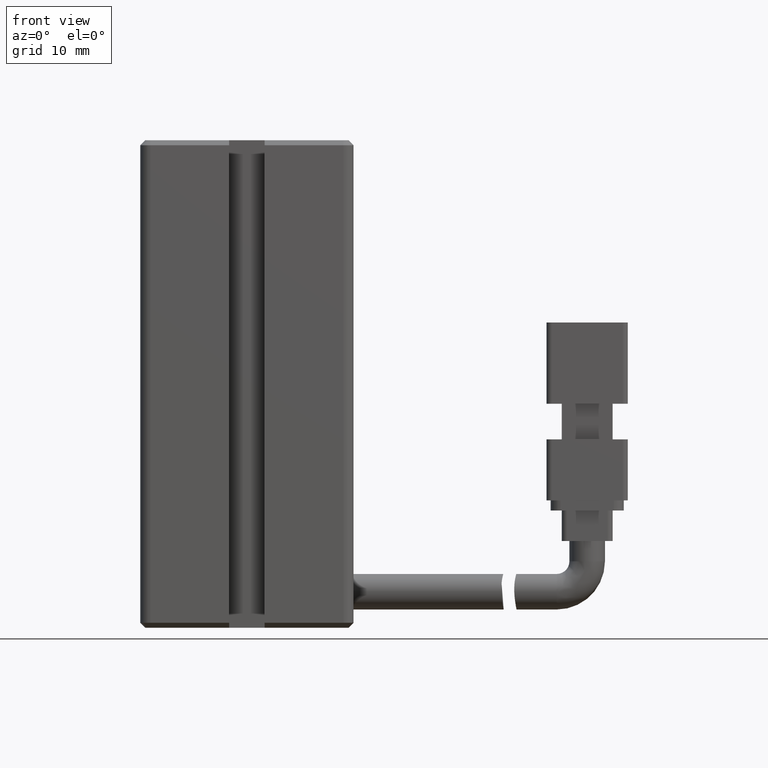
[diagram: clean part render]
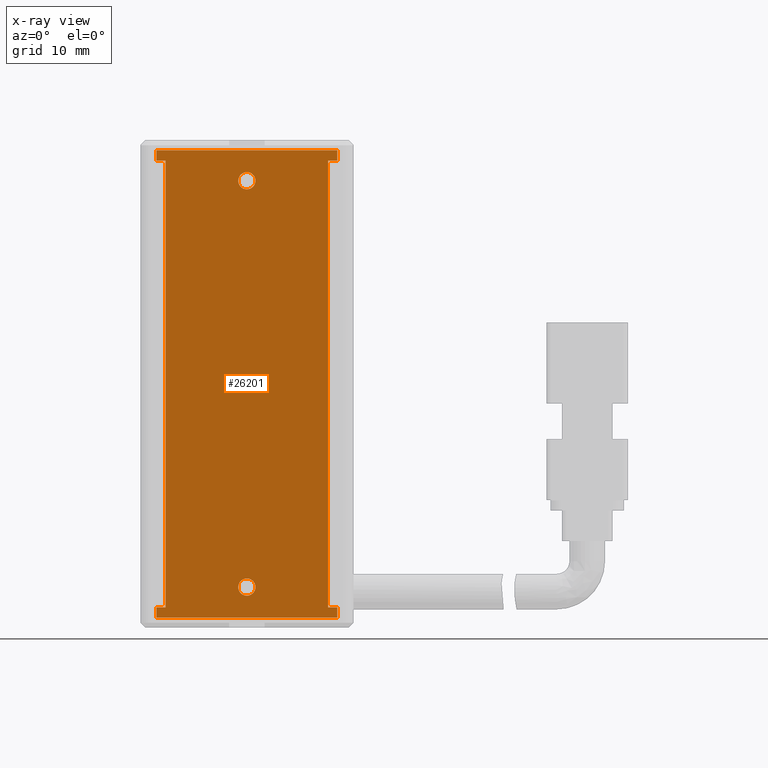
[diagram: x-ray — body ghosted, one internal face saturated and labeled with its STEP entity id]
A machine part, front view, then the same camera in x-ray: the body is ghosted and one INTERNAL B-rep face — a face not visible from any outside direction — is saturated and labeled: STEP entity #26201.
In plain terms, the highlighted planar face has unit normal (-0, 1, 0).
Its self-contained STEP definition (entity closure, byte-faithful):
#14 = ORIENTED_EDGE ( 'NONE', *, *, #17864, .F. ) ;
#63 = LINE ( 'NONE', #4789, #19734 ) ;
#184 = DIRECTION ( 'NONE',  ( 0.0000000000000000000, 0.0000000000000000000, 1.000000000000000000 ) ) ;
#286 = EDGE_LOOP ( 'NONE', ( #15730, #19666 ) ) ;
#483 = CIRCLE ( 'NONE', #11554, 0.8500000000000035300 ) ;
#758 = CARTESIAN_POINT ( 'NONE',  ( 40.92537974683542500, 31.49073232304836600, -135.0000000000000000 ) ) ;
#1601 = CARTESIAN_POINT ( 'NONE',  ( 49.82537974683543100, 31.49073232304836600, -92.00000000000001400 ) ) ;
#1969 = CARTESIAN_POINT ( 'NONE',  ( 49.82537974683543100, 31.49073232304836600, -138.0000000000000000 ) ) ;
#2538 = VECTOR ( 'NONE', #5864, 1000.000000000000000 ) ;
#2645 = LINE ( 'NONE', #25489, #18529 ) ;
#3843 = EDGE_CURVE ( 'NONE', #30228, #37076, #9874, .T. ) ;
#3874 = VERTEX_POINT ( 'NONE', #37229 ) ;
#4023 = VERTEX_POINT ( 'NONE', #7896 ) ;
#4068 = EDGE_CURVE ( 'NONE', #34183, #18197, #483, .T. ) ;
#4177 = DIRECTION ( 'NONE',  ( -0.0000000000000000000, -1.000000000000000000, -0.0000000000000000000 ) ) ;
#4376 = CARTESIAN_POINT ( 'NONE',  ( 49.82537974683543100, 31.49073232304836600, -93.00000000000000000 ) ) ;
#4789 = CARTESIAN_POINT ( 'NONE',  ( 32.02537974683542600, 31.49073232304836600, -92.00000000000001400 ) ) ;
#4816 = EDGE_CURVE ( 'NONE', #26767, #8850, #13237, .T. ) ;
#5229 = DIRECTION ( 'NONE',  ( 1.548860246407863500E-017, 0.0000000000000000000, 1.000000000000000000 ) ) ;
#5733 = DIRECTION ( 'NONE',  ( -0.0000000000000000000, 1.000000000000000000, 0.0000000000000000000 ) ) ;
#5765 = VECTOR ( 'NONE', #28436, 1000.000000000000000 ) ;
#5864 = DIRECTION ( 'NONE',  ( 1.000000000000000000, 0.0000000000000000000, 0.0000000000000000000 ) ) ;
#5923 = CARTESIAN_POINT ( 'NONE',  ( 40.92537974683542500, 31.49073232304836600, -137.0000000000000000 ) ) ;
#6562 = FACE_OUTER_BOUND ( 'NONE', #16074, .T. ) ;
#6609 = CARTESIAN_POINT ( 'NONE',  ( 40.92537974683542500, 31.49073232304836600, -94.15000000000000600 ) ) ;
#6978 = DIRECTION ( 'NONE',  ( -1.548860246407863500E-017, -0.0000000000000000000, -1.000000000000000000 ) ) ;
#7257 = LINE ( 'NONE', #1601, #38136 ) ;
#7302 = EDGE_CURVE ( 'NONE', #8850, #14163, #2645, .T. ) ;
#7861 = EDGE_CURVE ( 'NONE', #3874, #12065, #34262, .T. ) ;
#7896 = CARTESIAN_POINT ( 'NONE',  ( 48.92537974683541800, 31.49073232304836600, -137.0000000000000000 ) ) ;
#8493 = ORIENTED_EDGE ( 'NONE', *, *, #22678, .T. ) ;
#8681 = ORIENTED_EDGE ( 'NONE', *, *, #7302, .F. ) ;
#8691 = DIRECTION ( 'NONE',  ( 0.0000000000000000000, 0.0000000000000000000, 1.000000000000000000 ) ) ;
#8850 = VERTEX_POINT ( 'NONE', #4376 ) ;
#9106 = CARTESIAN_POINT ( 'NONE',  ( 32.02537974683542600, 31.49073232304836600, -137.0000000000000000 ) ) ;
#9319 = CARTESIAN_POINT ( 'NONE',  ( 30.42537974683542500, 31.49073232304836600, -93.00000000000000000 ) ) ;
#9452 = VERTEX_POINT ( 'NONE', #22627 ) ;
#9866 = ORIENTED_EDGE ( 'NONE', *, *, #32088, .F. ) ;
#9874 = LINE ( 'NONE', #28360, #37533 ) ;
#11042 = EDGE_CURVE ( 'NONE', #37076, #16675, #35071, .T. ) ;
#11117 = CIRCLE ( 'NONE', #24940, 0.8500000000000035300 ) ;
#11339 = DIRECTION ( 'NONE',  ( -0.0000000000000000000, -1.000000000000000000, -0.0000000000000000000 ) ) ;
#11404 = CIRCLE ( 'NONE', #37981, 0.8499999999999896500 ) ;
#11491 = VERTEX_POINT ( 'NONE', #23393 ) ;
#11554 = AXIS2_PLACEMENT_3D ( 'NONE', #30449, #36328, #184 ) ;
#12065 = VERTEX_POINT ( 'NONE', #21150 ) ;
#12138 = DIRECTION ( 'NONE',  ( -1.000000000000000000, -0.0000000000000000000, 0.0000000000000000000 ) ) ;
#12961 = CARTESIAN_POINT ( 'NONE',  ( 49.82537974683543100, 31.49073232304836600, -92.00000000000001400 ) ) ;
#13237 = LINE ( 'NONE', #12961, #26872 ) ;
#13256 = VECTOR ( 'NONE', #20844, 1000.000000000000000 ) ;
#13259 = DIRECTION ( 'NONE',  ( -0.0000000000000000000, -0.0000000000000000000, -1.000000000000000000 ) ) ;
#14020 = CARTESIAN_POINT ( 'NONE',  ( 48.92537974683541800, 31.49073232304836600, -93.00000000000000000 ) ) ;
#14163 = VERTEX_POINT ( 'NONE', #14020 ) ;
#14326 = ORIENTED_EDGE ( 'NONE', *, *, #11042, .T. ) ;
#15414 = ORIENTED_EDGE ( 'NONE', *, *, #4816, .F. ) ;
#15550 = ORIENTED_EDGE ( 'NONE', *, *, #24098, .F. ) ;
#15730 = ORIENTED_EDGE ( 'NONE', *, *, #18087, .F. ) ;
#15849 = LINE ( 'NONE', #34692, #30891 ) ;
#16074 = EDGE_LOOP ( 'NONE', ( #15550, #8493, #17906, #14326, #38474, #23351, #24648, #17490, #14, #8681, #15414, #36926 ) ) ;
#16675 = VERTEX_POINT ( 'NONE', #9106 ) ;
#16827 = CIRCLE ( 'NONE', #33871, 0.8499999999999896500 ) ;
#17490 = ORIENTED_EDGE ( 'NONE', *, *, #23687, .F. ) ;
#17864 = EDGE_CURVE ( 'NONE', #14163, #4023, #15849, .T. ) ;
#17906 = ORIENTED_EDGE ( 'NONE', *, *, #3843, .T. ) ;
#18006 = CARTESIAN_POINT ( 'NONE',  ( 40.92537974683542500, 31.49073232304836600, -137.0000000000000000 ) ) ;
#18087 = EDGE_CURVE ( 'NONE', #18197, #34183, #11117, .T. ) ;
#18197 = VERTEX_POINT ( 'NONE', #6609 ) ;
#18529 = VECTOR ( 'NONE', #28257, 1000.000000000000000 ) ;
#18708 = FACE_BOUND ( 'NONE', #38067, .T. ) ;
#19580 = ORIENTED_EDGE ( 'NONE', *, *, #28843, .F. ) ;
#19666 = ORIENTED_EDGE ( 'NONE', *, *, #4068, .F. ) ;
#19734 = VECTOR ( 'NONE', #19936, 1000.000000000000000 ) ;
#19936 = DIRECTION ( 'NONE',  ( 1.548860246407863500E-017, 0.0000000000000000000, 1.000000000000000000 ) ) ;
#20005 = DIRECTION ( 'NONE',  ( 0.0000000000000000000, 0.0000000000000000000, 1.000000000000000000 ) ) ;
#20164 = VERTEX_POINT ( 'NONE', #37799 ) ;
#20629 = CARTESIAN_POINT ( 'NONE',  ( 32.92537974683542500, 31.49073232304836600, -137.0000000000000000 ) ) ;
#20746 = CARTESIAN_POINT ( 'NONE',  ( 40.92537974683542500, 31.49073232304836600, -95.00000000000001400 ) ) ;
#20844 = DIRECTION ( 'NONE',  ( 1.548860246407863500E-017, 0.0000000000000000000, 1.000000000000000000 ) ) ;
#21021 = DIRECTION ( 'NONE',  ( -0.0000000000000000000, -1.000000000000000000, -0.0000000000000000000 ) ) ;
#21150 = CARTESIAN_POINT ( 'NONE',  ( 32.02537974683542600, 31.49073232304836600, -138.0000000000000000 ) ) ;
#21252 = VERTEX_POINT ( 'NONE', #24116 ) ;
#22627 = CARTESIAN_POINT ( 'NONE',  ( 49.82537974683543100, 31.49073232304836600, -137.0000000000000000 ) ) ;
#22629 = DIRECTION ( 'NONE',  ( -0.0000000000000000000, -0.0000000000000000000, -1.000000000000000000 ) ) ;
#22678 = EDGE_CURVE ( 'NONE', #31546, #30228, #27003, .T. ) ;
#22860 = EDGE_CURVE ( 'NONE', #9452, #3874, #7257, .T. ) ;
#23351 = ORIENTED_EDGE ( 'NONE', *, *, #7861, .F. ) ;
#23393 = CARTESIAN_POINT ( 'NONE',  ( 40.92537974683542500, 31.49073232304836600, -135.8499999999999900 ) ) ;
#23635 = CARTESIAN_POINT ( 'NONE',  ( 49.82537974683543100, 31.49073232304836600, -92.00000000000001400 ) ) ;
#23687 = EDGE_CURVE ( 'NONE', #4023, #9452, #26417, .T. ) ;
#24098 = EDGE_CURVE ( 'NONE', #31546, #20164, #63, .T. ) ;
#24116 = CARTESIAN_POINT ( 'NONE',  ( 40.92537974683542500, 31.49073232304836600, -134.1500000000000100 ) ) ;
#24648 = ORIENTED_EDGE ( 'NONE', *, *, #22860, .F. ) ;
#24940 = AXIS2_PLACEMENT_3D ( 'NONE', #20746, #21021, #8691 ) ;
#25489 = CARTESIAN_POINT ( 'NONE',  ( 40.92537974683542500, 31.49073232304836600, -93.00000000000000000 ) ) ;
#26201 = ADVANCED_FACE ( 'NONE', ( #36523, #18708, #6562 ), #38120, .F. ) ;
#26417 = LINE ( 'NONE', #18006, #2538 ) ;
#26767 = VERTEX_POINT ( 'NONE', #32491 ) ;
#26872 = VECTOR ( 'NONE', #6978, 1000.000000000000000 ) ;
#27003 = LINE ( 'NONE', #9319, #35893 ) ;
#27156 = DIRECTION ( 'NONE',  ( 1.000000000000000000, -0.0000000000000000000, 0.0000000000000000000 ) ) ;
#28257 = DIRECTION ( 'NONE',  ( -1.000000000000000000, -0.0000000000000000000, -0.0000000000000000000 ) ) ;
#28303 = CARTESIAN_POINT ( 'NONE',  ( 40.92537974683542500, 31.49073232304836600, -95.85000000000002300 ) ) ;
#28360 = CARTESIAN_POINT ( 'NONE',  ( 32.92537974683542500, 31.49073232304836600, -91.00000000000000000 ) ) ;
#28436 = DIRECTION ( 'NONE',  ( 1.000000000000000000, 0.0000000000000000000, -1.548860246407863500E-017 ) ) ;
#28443 = DIRECTION ( 'NONE',  ( -1.548860246407863500E-017, -0.0000000000000000000, -1.000000000000000000 ) ) ;
#28843 = EDGE_CURVE ( 'NONE', #21252, #11491, #11404, .T. ) ;
#30228 = VERTEX_POINT ( 'NONE', #35874 ) ;
#30449 = CARTESIAN_POINT ( 'NONE',  ( 40.92537974683542500, 31.49073232304836600, -95.00000000000001400 ) ) ;
#30891 = VECTOR ( 'NONE', #22629, 1000.000000000000000 ) ;
#31546 = VERTEX_POINT ( 'NONE', #32987 ) ;
#31795 = VECTOR ( 'NONE', #12138, 1000.000000000000000 ) ;
#32088 = EDGE_CURVE ( 'NONE', #11491, #21252, #16827, .T. ) ;
#32310 = CARTESIAN_POINT ( 'NONE',  ( 40.92537974683542500, 31.49073232304836600, -135.0000000000000000 ) ) ;
#32491 = CARTESIAN_POINT ( 'NONE',  ( 49.82537974683543100, 31.49073232304836600, -92.00000000000001400 ) ) ;
#32620 = AXIS2_PLACEMENT_3D ( 'NONE', #23635, #5733, #5229 ) ;
#32987 = CARTESIAN_POINT ( 'NONE',  ( 32.02537974683542600, 31.49073232304836600, -93.00000000000000000 ) ) ;
#33487 = DIRECTION ( 'NONE',  ( 0.0000000000000000000, 0.0000000000000000000, 1.000000000000000000 ) ) ;
#33835 = LINE ( 'NONE', #37435, #5765 ) ;
#33871 = AXIS2_PLACEMENT_3D ( 'NONE', #758, #4177, #33487 ) ;
#34183 = VERTEX_POINT ( 'NONE', #28303 ) ;
#34220 = EDGE_CURVE ( 'NONE', #12065, #16675, #37602, .T. ) ;
#34262 = LINE ( 'NONE', #1969, #38423 ) ;
#34692 = CARTESIAN_POINT ( 'NONE',  ( 48.92537974683541800, 31.49073232304836600, -91.00000000000000000 ) ) ;
#34828 = DIRECTION ( 'NONE',  ( -1.000000000000000000, -0.0000000000000000000, 1.548860246407863500E-017 ) ) ;
#35071 = LINE ( 'NONE', #5923, #31795 ) ;
#35874 = CARTESIAN_POINT ( 'NONE',  ( 32.92537974683542500, 31.49073232304836600, -93.00000000000000000 ) ) ;
#35893 = VECTOR ( 'NONE', #27156, 1000.000000000000000 ) ;
#36328 = DIRECTION ( 'NONE',  ( -0.0000000000000000000, -1.000000000000000000, -0.0000000000000000000 ) ) ;
#36523 = FACE_BOUND ( 'NONE', #286, .T. ) ;
#36926 = ORIENTED_EDGE ( 'NONE', *, *, #37880, .F. ) ;
#37076 = VERTEX_POINT ( 'NONE', #20629 ) ;
#37229 = CARTESIAN_POINT ( 'NONE',  ( 49.82537974683543100, 31.49073232304836600, -138.0000000000000000 ) ) ;
#37435 = CARTESIAN_POINT ( 'NONE',  ( 49.82537974683543100, 31.49073232304836600, -92.00000000000001400 ) ) ;
#37533 = VECTOR ( 'NONE', #13259, 1000.000000000000000 ) ;
#37602 = LINE ( 'NONE', #38338, #13256 ) ;
#37799 = CARTESIAN_POINT ( 'NONE',  ( 32.02537974683543400, 31.49073232304836600, -92.00000000000001400 ) ) ;
#37880 = EDGE_CURVE ( 'NONE', #20164, #26767, #33835, .T. ) ;
#37981 = AXIS2_PLACEMENT_3D ( 'NONE', #32310, #11339, #20005 ) ;
#38067 = EDGE_LOOP ( 'NONE', ( #19580, #9866 ) ) ;
#38120 = PLANE ( 'NONE',  #32620 ) ;
#38136 = VECTOR ( 'NONE', #28443, 1000.000000000000000 ) ;
#38338 = CARTESIAN_POINT ( 'NONE',  ( 32.02537974683542600, 31.49073232304836600, -92.00000000000001400 ) ) ;
#38423 = VECTOR ( 'NONE', #34828, 1000.000000000000000 ) ;
#38474 = ORIENTED_EDGE ( 'NONE', *, *, #34220, .F. ) ;